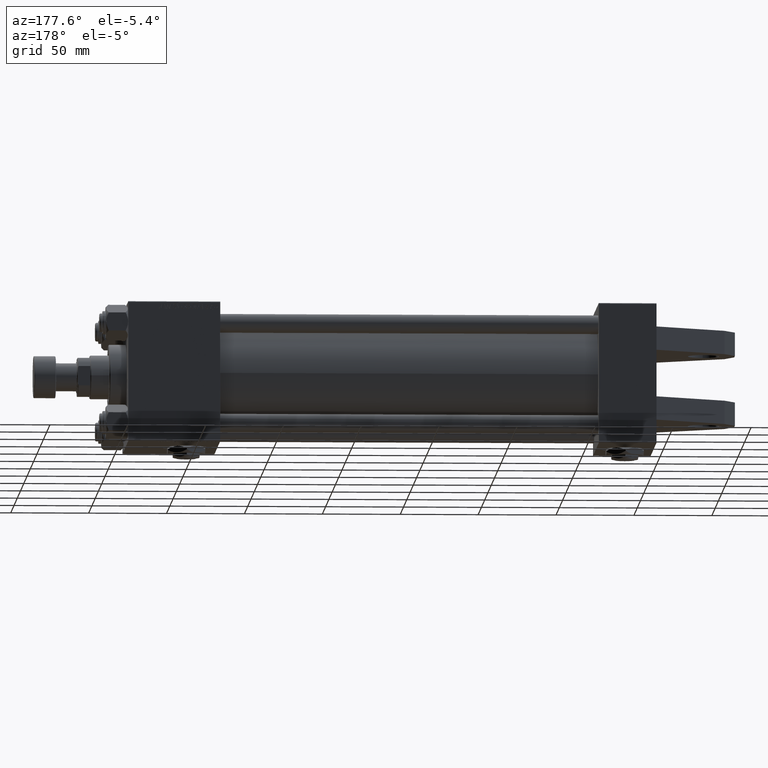
[diagram: clean part render]
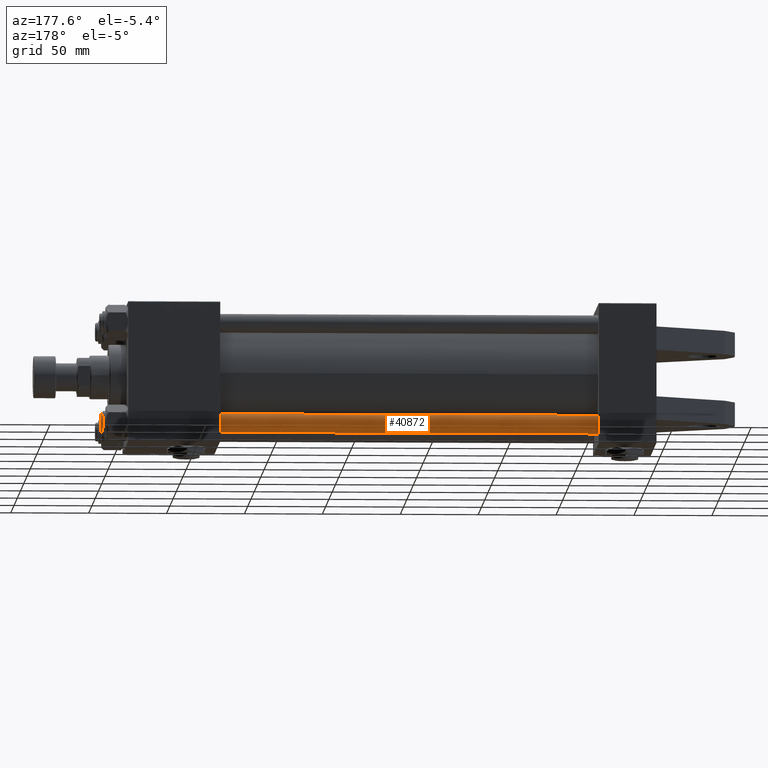
[diagram: same view with one face highlighted and labeled with its STEP entity id]
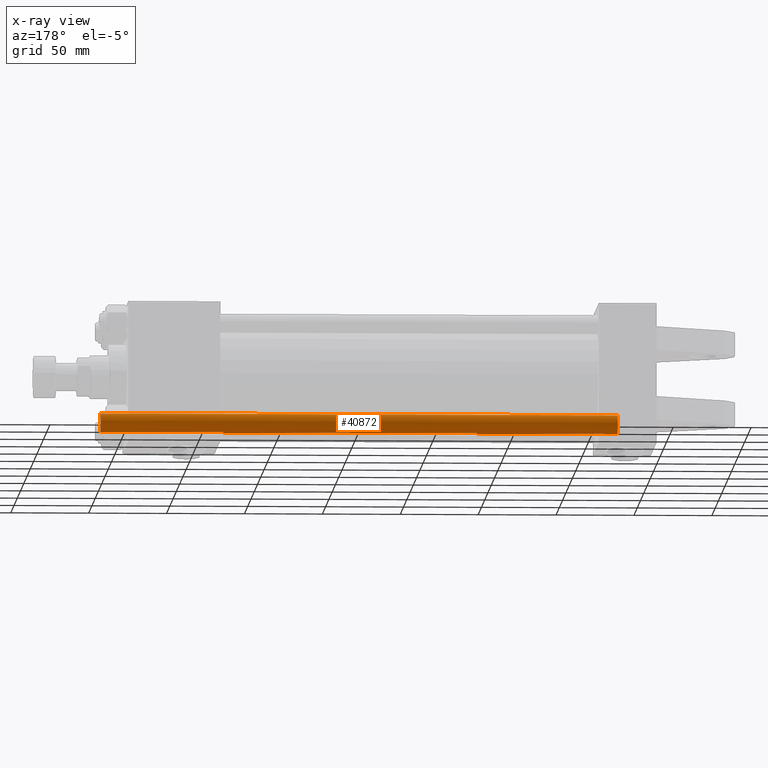
[diagram: x-ray of the same camera — body ghosted, the highlighted face saturated]
A machine part, auxiliary view. The second image highlights one B-rep face of the part: STEP entity #40872.
The next image is the same camera in x-ray: the body ghosted, the highlighted face saturated — about 0% of this face is hidden behind the body in this view.
In plain terms, the highlighted cylindrical surface (edge-blend (fillet) strip) has radius 6 mm, axis along (1, -0, -0).
Its self-contained STEP definition (entity closure, byte-faithful):
#935 = VERTEX_POINT ( 'NONE', #22836 ) ;
#6458 = CIRCLE ( 'NONE', #31764, 6.000000000000000888 ) ;
#7169 = LINE ( 'NONE', #39650, #27643 ) ;
#7418 = LINE ( 'NONE', #15602, #34252 ) ;
#8063 = EDGE_CURVE ( 'NONE', #26778, #935, #7418, .T. ) ;
#8271 = EDGE_CURVE ( 'NONE', #26778, #16820, #6458, .T. ) ;
#9218 = VERTEX_POINT ( 'NONE', #16991 ) ;
#9645 = CIRCLE ( 'NONE', #23962, 6.000000000000000888 ) ;
#11532 = CARTESIAN_POINT ( 'NONE',  ( -6.000000000000000888, 0.000000000000000000, 332.5000000000001137 ) ) ;
#15602 = CARTESIAN_POINT ( 'NONE',  ( -6.000000000000000888, 0.000000000000000000, 333.0000000000000000 ) ) ;
#15900 = ORIENTED_EDGE ( 'NONE', *, *, #46026, .T. ) ;
#16236 = ORIENTED_EDGE ( 'NONE', *, *, #33963, .T. ) ;
#16820 = VERTEX_POINT ( 'NONE', #40874 ) ;
#16991 = CARTESIAN_POINT ( 'NONE',  ( 6.000000000000000888, 7.347880794884120722E-16, 0.5000000000000004441 ) ) ;
#22836 = CARTESIAN_POINT ( 'NONE',  ( -6.000000000000000888, 0.000000000000000000, 0.5000000000000004441 ) ) ;
#23269 = DIRECTION ( 'NONE',  ( -0.000000000000000000, -0.000000000000000000, -1.000000000000000000 ) ) ;
#23962 = AXIS2_PLACEMENT_3D ( 'NONE', #27912, #52255, #40609 ) ;
#25319 = DIRECTION ( 'NONE',  ( 0.000000000000000000, 0.000000000000000000, -1.000000000000000000 ) ) ;
#26115 = ORIENTED_EDGE ( 'NONE', *, *, #8063, .F. ) ;
#26778 = VERTEX_POINT ( 'NONE', #11532 ) ;
#26999 = CARTESIAN_POINT ( 'NONE',  ( 0.000000000000000000, 0.000000000000000000, 333.0000000000000000 ) ) ;
#27643 = VECTOR ( 'NONE', #23269, 1000.000000000000000 ) ;
#27912 = CARTESIAN_POINT ( 'NONE',  ( 0.000000000000000000, 0.000000000000000000, 0.5000000000000004441 ) ) ;
#30975 = FACE_OUTER_BOUND ( 'NONE', #34027, .T. ) ;
#31711 = DIRECTION ( 'NONE',  ( -0.000000000000000000, -0.000000000000000000, -1.000000000000000000 ) ) ;
#31764 = AXIS2_PLACEMENT_3D ( 'NONE', #50185, #25319, #38019 ) ;
#33963 = EDGE_CURVE ( 'NONE', #9218, #935, #9645, .T. ) ;
#34027 = EDGE_LOOP ( 'NONE', ( #43737, #15900, #16236, #26115 ) ) ;
#34252 = VECTOR ( 'NONE', #31711, 1000.000000000000000 ) ;
#35957 = AXIS2_PLACEMENT_3D ( 'NONE', #26999, #43147, #39159 ) ;
#38019 = DIRECTION ( 'NONE',  ( 1.000000000000000000, 0.000000000000000000, 0.000000000000000000 ) ) ;
#39159 = DIRECTION ( 'NONE',  ( -1.000000000000000000, 0.000000000000000000, 0.000000000000000000 ) ) ;
#39650 = CARTESIAN_POINT ( 'NONE',  ( 6.000000000000000888, 7.347880794884120722E-16, 333.0000000000000000 ) ) ;
#40609 = DIRECTION ( 'NONE',  ( 1.000000000000000000, 0.000000000000000000, 0.000000000000000000 ) ) ;
#40872 = ADVANCED_FACE ( 'NONE', ( #30975 ), #47112, .T. ) ;
#40874 = CARTESIAN_POINT ( 'NONE',  ( 6.000000000000000888, 7.347880794884120722E-16, 332.5000000000001137 ) ) ;
#43147 = DIRECTION ( 'NONE',  ( -0.000000000000000000, -0.000000000000000000, -1.000000000000000000 ) ) ;
#43737 = ORIENTED_EDGE ( 'NONE', *, *, #8271, .T. ) ;
#46026 = EDGE_CURVE ( 'NONE', #16820, #9218, #7169, .T. ) ;
#47112 = CYLINDRICAL_SURFACE ( 'NONE', #35957, 6.000000000000000888 ) ;
#50185 = CARTESIAN_POINT ( 'NONE',  ( 0.000000000000000000, 0.000000000000000000, 332.5000000000001137 ) ) ;
#52255 = DIRECTION ( 'NONE',  ( -0.000000000000000000, -0.000000000000000000, 1.000000000000000000 ) ) ;